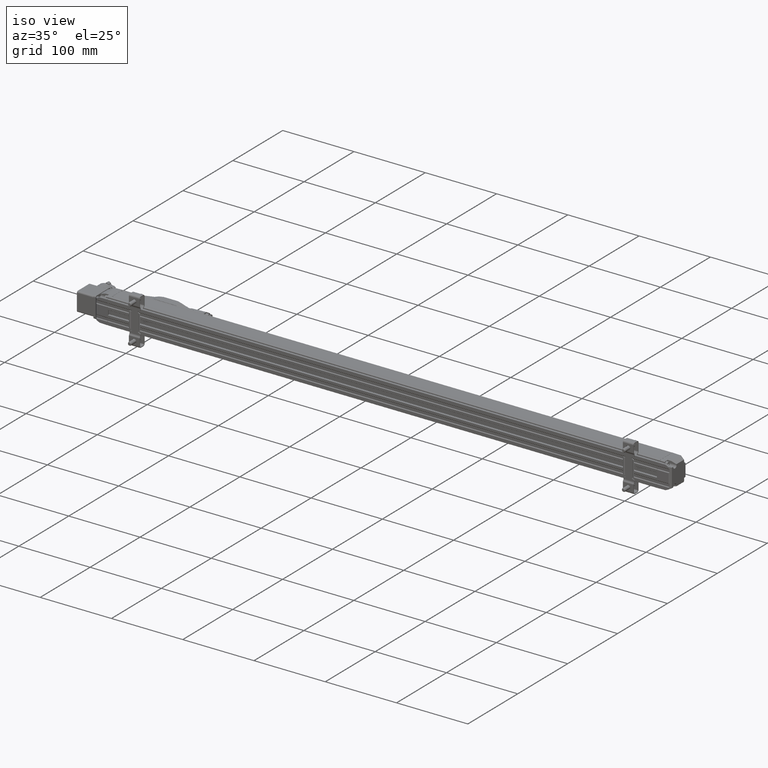
[diagram: clean part render]
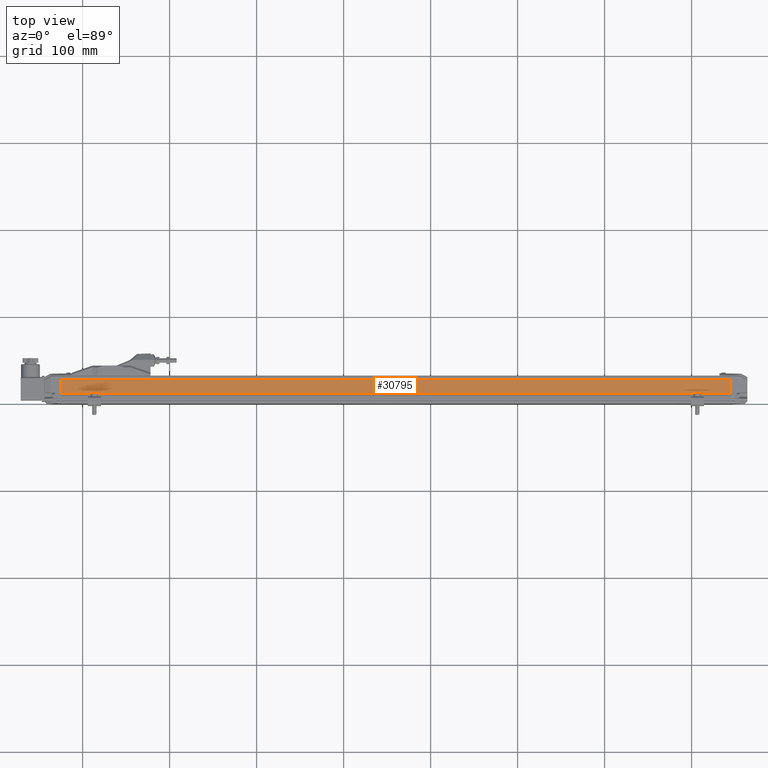
[diagram: tour spotlight — one face highlighted and labeled with its STEP entity id]
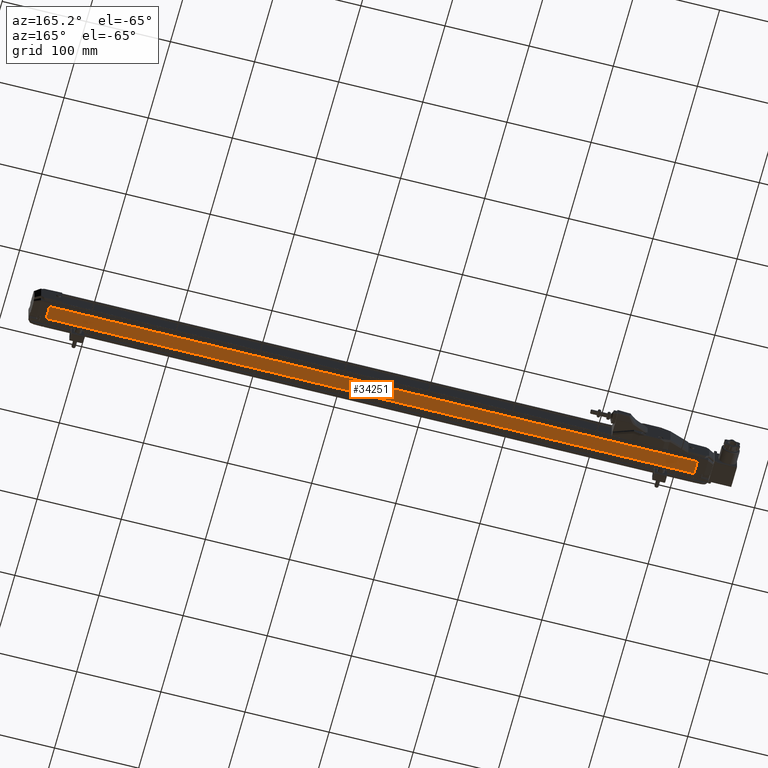
[diagram: tour spotlight — one face highlighted and labeled with its STEP entity id]
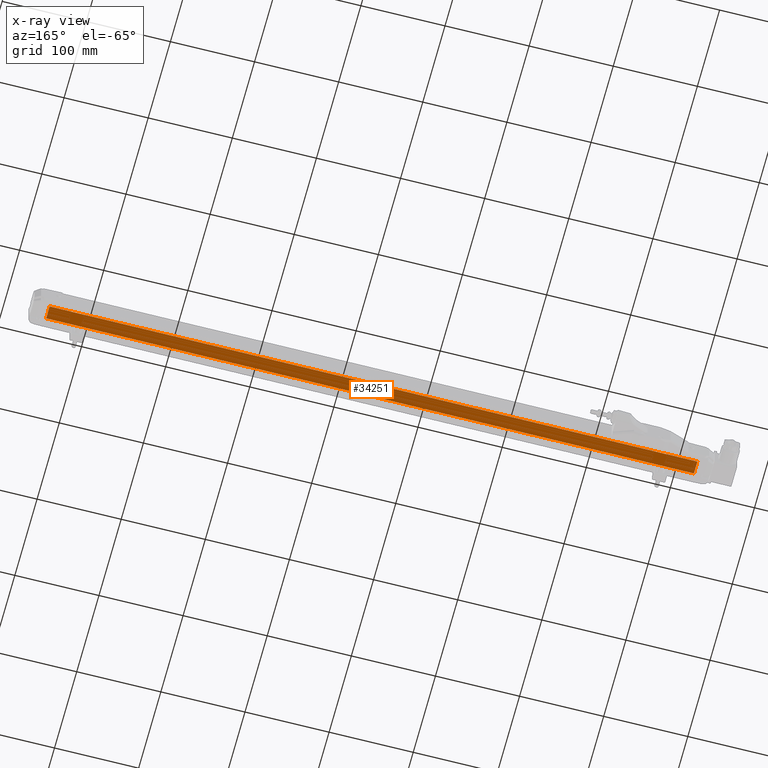
[diagram: x-ray of the same camera — body ghosted, this tour face saturated]
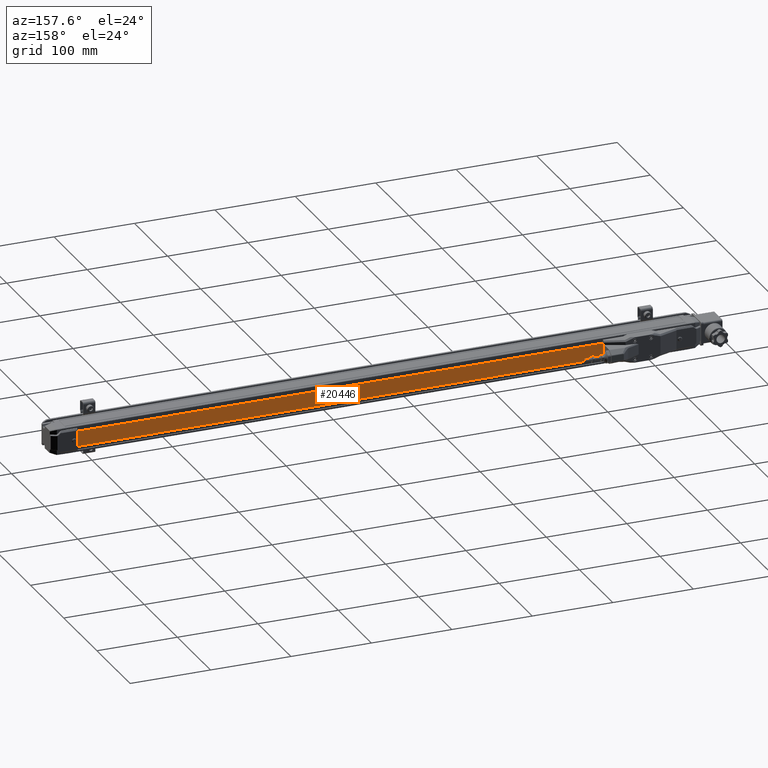
[diagram: tour spotlight — one face highlighted and labeled with its STEP entity id]
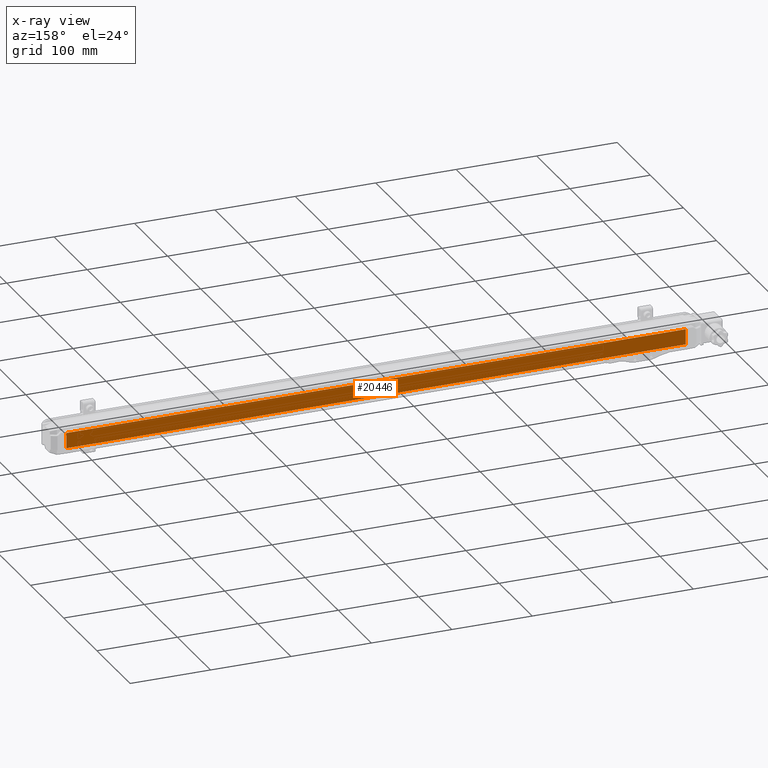
[diagram: x-ray of the same camera — body ghosted, this tour face saturated]
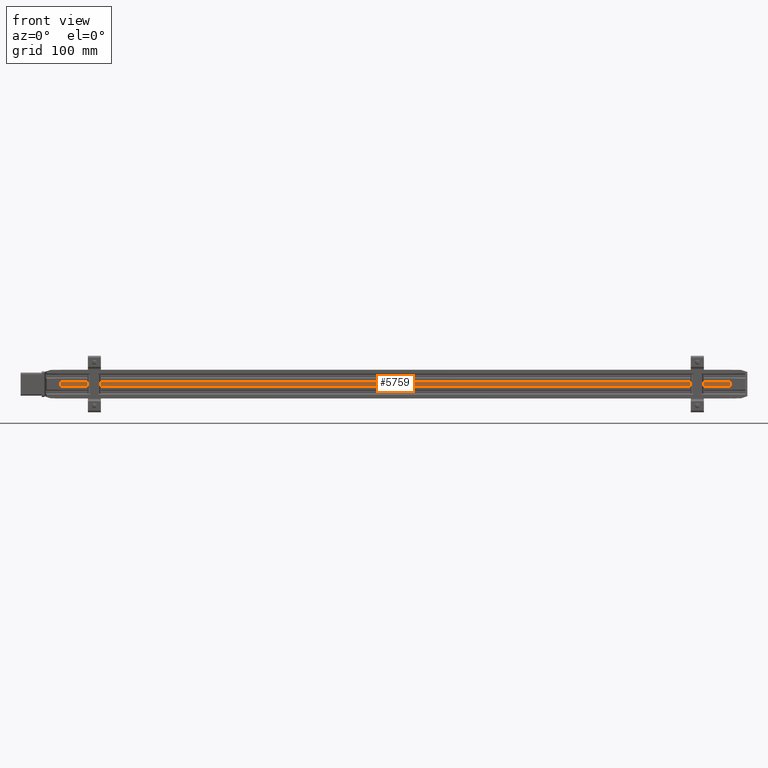
[diagram: tour spotlight — one face highlighted and labeled with its STEP entity id]
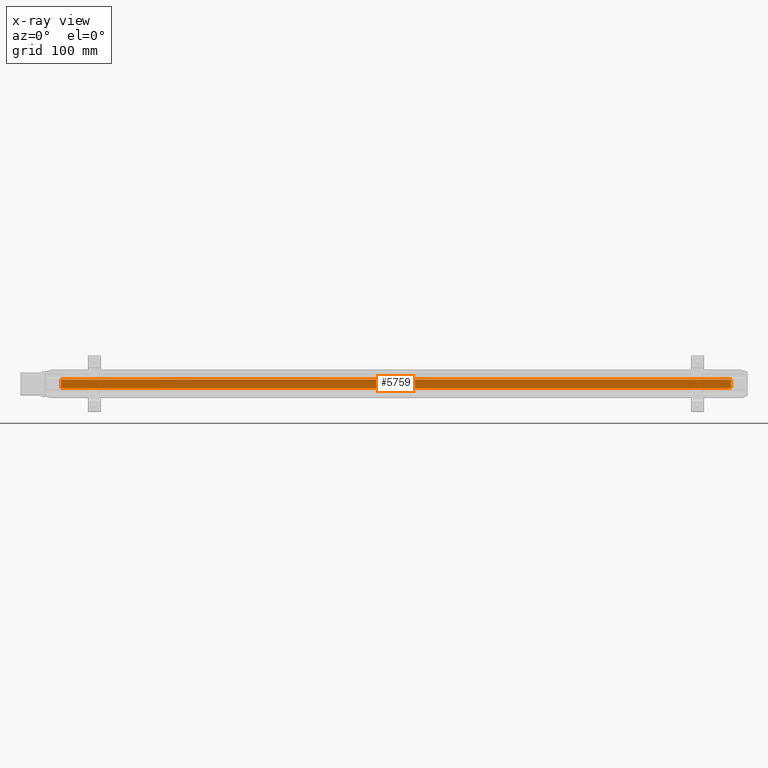
[diagram: x-ray of the same camera — body ghosted, this tour face saturated]
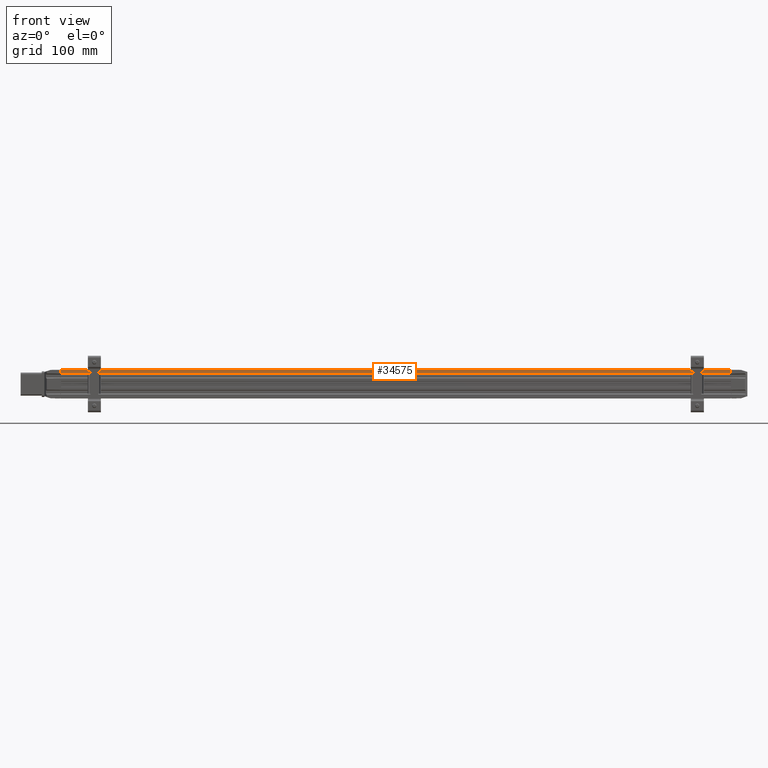
[diagram: tour spotlight — one face highlighted and labeled with its STEP entity id]
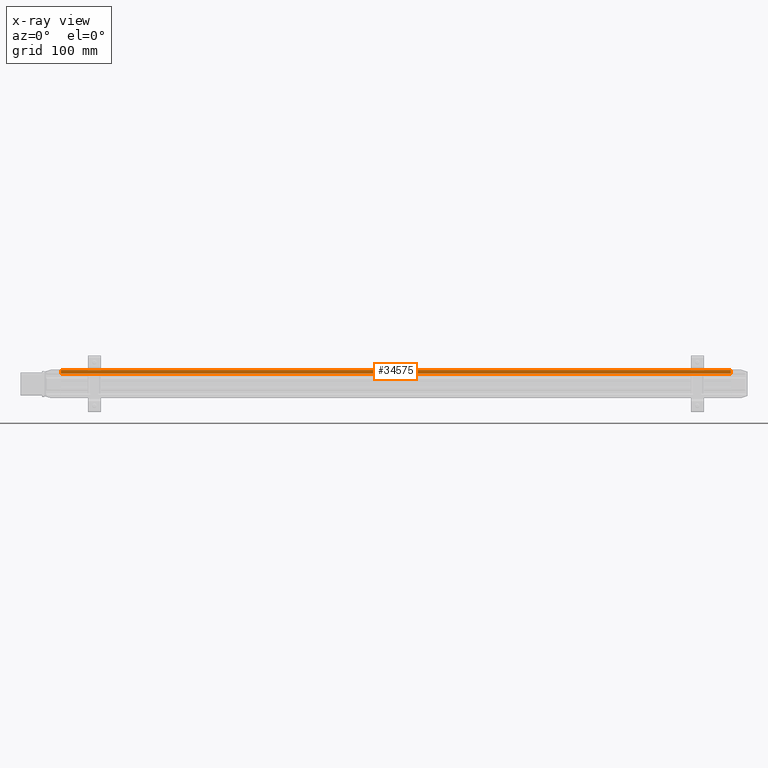
[diagram: x-ray of the same camera — body ghosted, this tour face saturated]
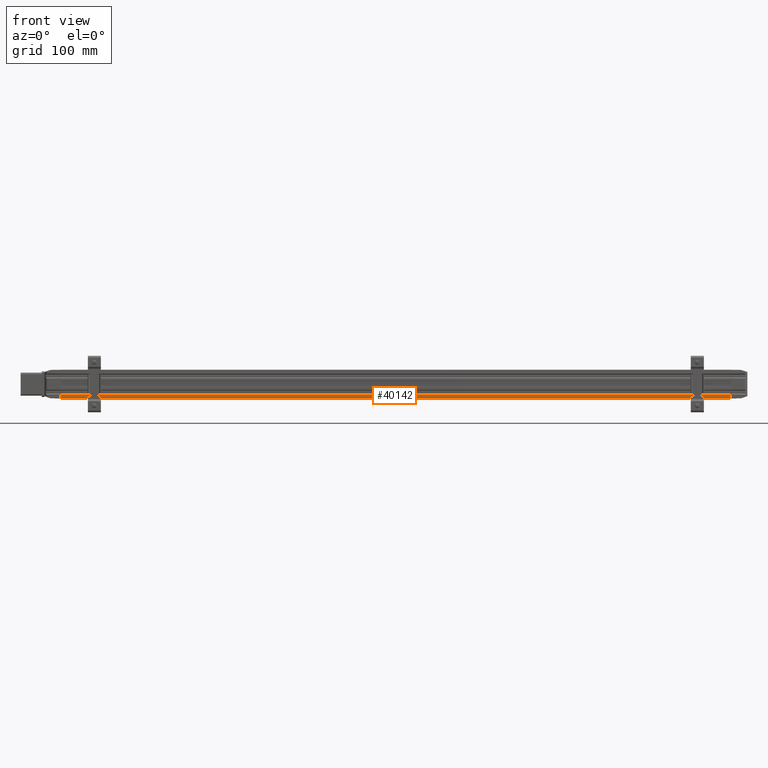
[diagram: tour spotlight — one face highlighted and labeled with its STEP entity id]
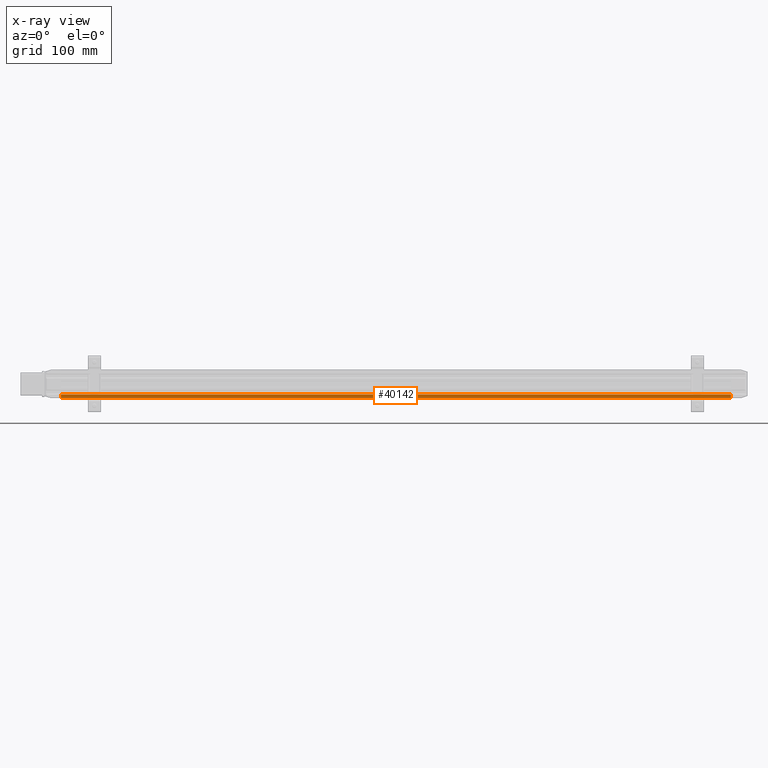
[diagram: x-ray of the same camera — body ghosted, this tour face saturated]
A machine part: a face-by-face anatomy tour. The part has 1314 B-rep faces; the first image is the clean iso view, then the 6 largest visible faces are spotlighted one at a time (largest first), each with its STEP entity span.

Face 1 — top view, entity #30795. In plain terms, the highlighted planar face has unit normal (-0, -0, -1).
Definition (entity closure, byte-faithful):
#1591 = DIRECTION ( 'NONE',  ( 1.000000000000000000, -6.829894528618840264E-25, -1.341063538875720069E-28 ) ) ;
#2057 = ORIENTED_EDGE ( 'NONE', *, *, #22089, .T. ) ;
#3662 = LINE ( 'NONE', #21386, #44705 ) ;
#4028 = DIRECTION ( 'NONE',  ( -1.341063538875720069E-28, -1.936991253392630006E-26, -1.000000000000000000 ) ) ;
#4996 = DIRECTION ( 'NONE',  ( 6.829894528618840264E-25, 1.000000000000000000, -1.936991253392630006E-26 ) ) ;
#5271 = VERTEX_POINT ( 'NONE', #38239 ) ;
#5384 = VERTEX_POINT ( 'NONE', #20945 ) ;
#5745 = CARTESIAN_POINT ( 'NONE',  ( -4.921259842519685179, 0.4468503849212598911, 0.000000000000000000 ) ) ;
#6387 = LINE ( 'NONE', #20380, #38496 ) ;
#8839 = EDGE_CURVE ( 'NONE', #5271, #33490, #12320, .T. ) ;
#9257 = PLANE ( 'NONE',  #15667 ) ;
#11718 = DIRECTION ( 'NONE',  ( -1.000000000000000000, 6.829894528618840264E-25, 1.341063538875720069E-28 ) ) ;
#12320 = LINE ( 'NONE', #43813, #36620 ) ;
#13633 = ORIENTED_EDGE ( 'NONE', *, *, #42306, .F. ) ;
#15667 = AXIS2_PLACEMENT_3D ( 'NONE', #5745, #4028, #11718 ) ;
#17811 = DIRECTION ( 'NONE',  ( 1.000000000000000000, -6.829894528618840264E-25, -1.341063538875720069E-28 ) ) ;
#18743 = ORIENTED_EDGE ( 'NONE', *, *, #8839, .F. ) ;
#19876 = CARTESIAN_POINT ( 'NONE',  ( -4.921259842519685179, 0.4468503849212598911, 0.000000000000000000 ) ) ;
#20380 = CARTESIAN_POINT ( 'NONE',  ( -4.921259842519685179, 0.4468503849212598911, 0.000000000000000000 ) ) ;
#20945 = CARTESIAN_POINT ( 'NONE',  ( 25.39370078740157766, 0.4468503849212598911, 0.000000000000000000 ) ) ;
#21386 = CARTESIAN_POINT ( 'NONE',  ( 25.39370078740157766, 0.4468503849212598911, 0.000000000000000000 ) ) ;
#21572 = EDGE_LOOP ( 'NONE', ( #40406, #18743, #13633, #2057 ) ) ;
#21863 = VECTOR ( 'NONE', #4996, 39.37007874015748143 ) ;
#22089 = EDGE_CURVE ( 'NONE', #44454, #5384, #6387, .T. ) ;
#22724 = LINE ( 'NONE', #33446, #21863 ) ;
#26981 = FACE_OUTER_BOUND ( 'NONE', #21572, .T. ) ;
#30517 = EDGE_CURVE ( 'NONE', #5384, #33490, #3662, .T. ) ;
#30795 = ADVANCED_FACE ( 'NONE', ( #26981 ), #9257, .F. ) ;
#33446 = CARTESIAN_POINT ( 'NONE',  ( -4.921259842519685179, 0.4468503849212598911, 0.000000000000000000 ) ) ;
#33490 = VERTEX_POINT ( 'NONE', #39282 ) ;
#35858 = DIRECTION ( 'NONE',  ( 6.829894528618840264E-25, 1.000000000000000000, -1.936991253392630006E-26 ) ) ;
#36620 = VECTOR ( 'NONE', #1591, 39.37007874015748143 ) ;
#38239 = CARTESIAN_POINT ( 'NONE',  ( -4.921259842519685179, 1.061023630314960720, 0.000000000000000000 ) ) ;
#38496 = VECTOR ( 'NONE', #17811, 39.37007874015748143 ) ;
#39282 = CARTESIAN_POINT ( 'NONE',  ( 25.39370078740157766, 1.061023630314960720, 0.000000000000000000 ) ) ;
#40406 = ORIENTED_EDGE ( 'NONE', *, *, #30517, .T. ) ;
#42306 = EDGE_CURVE ( 'NONE', #44454, #5271, #22724, .T. ) ;
#43813 = CARTESIAN_POINT ( 'NONE',  ( -4.921259842519685179, 1.061023630314960720, 0.000000000000000000 ) ) ;
#44454 = VERTEX_POINT ( 'NONE', #19876 ) ;
#44705 = VECTOR ( 'NONE', #35858, 39.37007874015748143 ) ;

Face 2 — auxiliary view, entity #34251. An x-ray twin of the same camera follows (body ghosted, this face saturated) — the face is partly hidden behind the body. In plain terms, the highlighted planar face has unit normal (0, 0, 1).
Definition (entity closure, byte-faithful):
#203 = LINE ( 'NONE', #10933, #27644 ) ;
#668 = CARTESIAN_POINT ( 'NONE',  ( 25.39370078740157766, 0.4468503849212598911, -1.299077997440944987 ) ) ;
#1957 = ORIENTED_EDGE ( 'NONE', *, *, #22301, .T. ) ;
#5527 = CARTESIAN_POINT ( 'NONE',  ( -4.921259842519685179, 1.061023630314960720, -1.299077997440944987 ) ) ;
#6418 = DIRECTION ( 'NONE',  ( 1.341063538875720069E-28, 1.936991253392630006E-26, 1.000000000000000000 ) ) ;
#7433 = DIRECTION ( 'NONE',  ( 1.000000000000000000, -6.829894528618840264E-25, -1.341063538875720069E-28 ) ) ;
#8647 = VERTEX_POINT ( 'NONE', #668 ) ;
#8721 = EDGE_CURVE ( 'NONE', #11945, #8647, #203, .T. ) ;
#9015 = LINE ( 'NONE', #5527, #30863 ) ;
#10933 = CARTESIAN_POINT ( 'NONE',  ( -4.921259842519685179, 0.4468503849212598911, -1.299077997440944987 ) ) ;
#11945 = VERTEX_POINT ( 'NONE', #27658 ) ;
#12882 = LINE ( 'NONE', #15925, #37027 ) ;
#15771 = AXIS2_PLACEMENT_3D ( 'NONE', #20415, #6418, #21103 ) ;
#15925 = CARTESIAN_POINT ( 'NONE',  ( 25.39370078740157766, 1.061023630314960720, -1.299077997440944987 ) ) ;
#20415 = CARTESIAN_POINT ( 'NONE',  ( -4.921259842519685179, 1.061023630314960720, -1.299077997440944987 ) ) ;
#20773 = DIRECTION ( 'NONE',  ( -6.829894528618840264E-25, -1.000000000000000000, 1.936991253392630006E-26 ) ) ;
#20855 = EDGE_LOOP ( 'NONE', ( #1957, #21944, #39432, #29775 ) ) ;
#21103 = DIRECTION ( 'NONE',  ( 1.000000000000000000, -6.829894528618840264E-25, -1.341063538875720069E-28 ) ) ;
#21944 = ORIENTED_EDGE ( 'NONE', *, *, #8721, .F. ) ;
#22090 = CARTESIAN_POINT ( 'NONE',  ( -4.921259842519685179, 1.061023630314960720, -1.299077997440944987 ) ) ;
#22301 = EDGE_CURVE ( 'NONE', #37273, #8647, #12882, .T. ) ;
#23601 = LINE ( 'NONE', #28020, #37137 ) ;
#23607 = DIRECTION ( 'NONE',  ( -6.829894528618840264E-25, -1.000000000000000000, 1.936991253392630006E-26 ) ) ;
#23923 = FACE_OUTER_BOUND ( 'NONE', #20855, .T. ) ;
#27644 = VECTOR ( 'NONE', #7433, 39.37007874015748143 ) ;
#27658 = CARTESIAN_POINT ( 'NONE',  ( -4.921259842519685179, 0.4468503849212598911, -1.299077997440944987 ) ) ;
#27719 = EDGE_CURVE ( 'NONE', #30544, #11945, #23601, .T. ) ;
#28020 = CARTESIAN_POINT ( 'NONE',  ( -4.921259842519685179, 1.061023630314960720, -1.299077997440944987 ) ) ;
#29775 = ORIENTED_EDGE ( 'NONE', *, *, #39097, .T. ) ;
#30544 = VERTEX_POINT ( 'NONE', #22090 ) ;
#30863 = VECTOR ( 'NONE', #40741, 39.37007874015748143 ) ;
#34251 = ADVANCED_FACE ( 'NONE', ( #23923 ), #38378, .F. ) ;
#37027 = VECTOR ( 'NONE', #23607, 39.37007874015748143 ) ;
#37137 = VECTOR ( 'NONE', #20773, 39.37007874015748143 ) ;
#37273 = VERTEX_POINT ( 'NONE', #42769 ) ;
#38378 = PLANE ( 'NONE',  #15771 ) ;
#39097 = EDGE_CURVE ( 'NONE', #30544, #37273, #9015, .T. ) ;
#39432 = ORIENTED_EDGE ( 'NONE', *, *, #27719, .F. ) ;
#40741 = DIRECTION ( 'NONE',  ( 1.000000000000000000, -6.829894528618840264E-25, -1.341063538875720069E-28 ) ) ;
#42769 = CARTESIAN_POINT ( 'NONE',  ( 25.39370078740157766, 1.061023630314960720, -1.299077997440944987 ) ) ;

Face 3 — auxiliary view, entity #20446. An x-ray twin of the same camera follows (body ghosted, this face saturated) — the face is partly hidden behind the body. In plain terms, the highlighted planar face has unit normal (-0, -1, -0).
Definition (entity closure, byte-faithful):
#334 = CARTESIAN_POINT ( 'NONE',  ( 25.39370078740157766, 1.244094468976377987, -0.2731299497244098484 ) ) ;
#962 = VECTOR ( 'NONE', #34525, 39.37007874015748143 ) ;
#3157 = PLANE ( 'NONE',  #31240 ) ;
#3387 = DIRECTION ( 'NONE',  ( 1.341063538875099911E-28, -9.072071993112328873E-17, 1.000000000000000000 ) ) ;
#3556 = ORIENTED_EDGE ( 'NONE', *, *, #7709, .T. ) ;
#5383 = CARTESIAN_POINT ( 'NONE',  ( -4.921259842519685179, 1.244094468976377987, -0.2731299497244098484 ) ) ;
#6463 = LINE ( 'NONE', #31205, #30367 ) ;
#6508 = ORIENTED_EDGE ( 'NONE', *, *, #41247, .F. ) ;
#6830 = VECTOR ( 'NONE', #21314, 39.37007874015748143 ) ;
#7709 = EDGE_CURVE ( 'NONE', #21124, #20687, #26673, .T. ) ;
#7892 = CARTESIAN_POINT ( 'NONE',  ( -4.921259842519685179, 1.244094468976377987, -0.7974689979512658011 ) ) ;
#8151 = LINE ( 'NONE', #33123, #42482 ) ;
#9702 = EDGE_CURVE ( 'NONE', #12464, #20687, #28338, .T. ) ;
#9706 = EDGE_CURVE ( 'NONE', #19536, #21124, #35548, .T. ) ;
#9854 = CARTESIAN_POINT ( 'NONE',  ( 25.39370078740157766, 1.244094468976377987, -0.2731299497244098484 ) ) ;
#10019 = EDGE_CURVE ( 'NONE', #45299, #12464, #8151, .T. ) ;
#10315 = DIRECTION ( 'NONE',  ( -1.341063538875099911E-28, 9.072071993112328873E-17, -1.000000000000000000 ) ) ;
#10319 = CARTESIAN_POINT ( 'NONE',  ( 25.39370078740157766, 1.244094468976377987, -0.2731299497244098484 ) ) ;
#11759 = DIRECTION ( 'NONE',  ( -1.341063538875099911E-28, 9.072071993112328873E-17, -1.000000000000000000 ) ) ;
#12464 = VERTEX_POINT ( 'NONE', #40426 ) ;
#13399 = ORIENTED_EDGE ( 'NONE', *, *, #15323, .T. ) ;
#13886 = DIRECTION ( 'NONE',  ( -6.829894528618840264E-25, -1.000000000000000000, -9.072071993112328873E-17 ) ) ;
#15323 = EDGE_CURVE ( 'NONE', #26445, #23358, #6463, .T. ) ;
#18283 = EDGE_LOOP ( 'NONE', ( #44034, #28222, #3556, #46096, #39824, #24644, #6508, #13399 ) ) ;
#19536 = VERTEX_POINT ( 'NONE', #42334 ) ;
#19604 = DIRECTION ( 'NONE',  ( -1.341063538875099911E-28, 9.072071993112328873E-17, -1.000000000000000000 ) ) ;
#20446 = ADVANCED_FACE ( 'NONE', ( #24392 ), #3157, .F. ) ;
#20687 = VERTEX_POINT ( 'NONE', #37446 ) ;
#21124 = VERTEX_POINT ( 'NONE', #30383 ) ;
#21314 = DIRECTION ( 'NONE',  ( 1.000000000000000000, -6.829894528618840264E-25, -1.341063538875720069E-28 ) ) ;
#23358 = VERTEX_POINT ( 'NONE', #10319 ) ;
#24392 = FACE_OUTER_BOUND ( 'NONE', #18283, .T. ) ;
#24644 = ORIENTED_EDGE ( 'NONE', *, *, #37732, .F. ) ;
#26445 = VERTEX_POINT ( 'NONE', #27786 ) ;
#26653 = CARTESIAN_POINT ( 'NONE',  ( 25.39370078740157766, 1.244094468976377987, -0.2731299497244098484 ) ) ;
#26673 = LINE ( 'NONE', #9854, #35178 ) ;
#27509 = EDGE_CURVE ( 'NONE', #23358, #19536, #43687, .T. ) ;
#27786 = CARTESIAN_POINT ( 'NONE',  ( -4.921259842519685179, 1.244094468976377987, -0.2731299497244098484 ) ) ;
#28222 = ORIENTED_EDGE ( 'NONE', *, *, #9706, .T. ) ;
#28338 = LINE ( 'NONE', #39059, #6830 ) ;
#30367 = VECTOR ( 'NONE', #45412, 39.37007874015748143 ) ;
#30383 = CARTESIAN_POINT ( 'NONE',  ( 25.39370078740157766, 1.244094468976377987, -0.7971094529879507729 ) ) ;
#30798 = CARTESIAN_POINT ( 'NONE',  ( -4.921259842519685179, 1.244094468976377987, -0.2731299497244098484 ) ) ;
#31205 = CARTESIAN_POINT ( 'NONE',  ( -4.921259842519685179, 1.244094468976377987, -0.2731299497244098484 ) ) ;
#31240 = AXIS2_PLACEMENT_3D ( 'NONE', #38174, #13886, #3387 ) ;
#32246 = VERTEX_POINT ( 'NONE', #43419 ) ;
#32926 = VECTOR ( 'NONE', #11759, 39.37007874015748143 ) ;
#33123 = CARTESIAN_POINT ( 'NONE',  ( -4.921259842519685179, 1.244094468976377987, -0.2731299497244098484 ) ) ;
#34118 = DIRECTION ( 'NONE',  ( -1.341063538875099911E-28, 9.072071993112328873E-17, -1.000000000000000000 ) ) ;
#34525 = DIRECTION ( 'NONE',  ( -1.341063538875099911E-28, 9.072071993112328873E-17, -1.000000000000000000 ) ) ;
#35178 = VECTOR ( 'NONE', #34118, 39.37007874015748143 ) ;
#35548 = LINE ( 'NONE', #334, #32926 ) ;
#36473 = DIRECTION ( 'NONE',  ( -1.341063538875099911E-28, 9.072071993112328873E-17, -1.000000000000000000 ) ) ;
#37446 = CARTESIAN_POINT ( 'NONE',  ( 25.39370078740157766, 1.244094468976377987, -1.025948047716535472 ) ) ;
#37732 = EDGE_CURVE ( 'NONE', #32246, #45299, #41288, .T. ) ;
#37958 = VECTOR ( 'NONE', #36473, 39.37007874015748143 ) ;
#38174 = CARTESIAN_POINT ( 'NONE',  ( -4.921259842519685179, 1.244094468976377987, -0.2731299497244098484 ) ) ;
#39059 = CARTESIAN_POINT ( 'NONE',  ( -4.921259842519685179, 1.244094468976377987, -1.025948047716535472 ) ) ;
#39824 = ORIENTED_EDGE ( 'NONE', *, *, #10019, .F. ) ;
#40426 = CARTESIAN_POINT ( 'NONE',  ( -4.921259842519685179, 1.244094468976377987, -1.025948047716535472 ) ) ;
#41247 = EDGE_CURVE ( 'NONE', #26445, #32246, #44098, .T. ) ;
#41288 = LINE ( 'NONE', #30798, #962 ) ;
#42334 = CARTESIAN_POINT ( 'NONE',  ( 25.39370078740157766, 1.244094468976377987, -0.5019685431158645850 ) ) ;
#42482 = VECTOR ( 'NONE', #10315, 39.37007874015748143 ) ;
#42663 = VECTOR ( 'NONE', #19604, 39.37007874015748143 ) ;
#43419 = CARTESIAN_POINT ( 'NONE',  ( -4.921259842519685179, 1.244094468976377987, -0.5023280880783432822 ) ) ;
#43687 = LINE ( 'NONE', #26653, #37958 ) ;
#44034 = ORIENTED_EDGE ( 'NONE', *, *, #27509, .T. ) ;
#44098 = LINE ( 'NONE', #5383, #42663 ) ;
#45299 = VERTEX_POINT ( 'NONE', #7892 ) ;
#45412 = DIRECTION ( 'NONE',  ( 1.000000000000000000, -6.829894528618840264E-25, -1.341063538875720069E-28 ) ) ;
#46096 = ORIENTED_EDGE ( 'NONE', *, *, #9702, .F. ) ;

Face 4 — front view, entity #5759. An x-ray twin of the same camera follows (body ghosted, this face saturated) — the face is partly hidden behind the body. In plain terms, the highlighted planar face has unit normal (0, 1, -0).
Definition (entity closure, byte-faithful):
#2486 = CARTESIAN_POINT ( 'NONE',  ( -4.921259842519685179, 0.2367734739763779905, -0.8483578963779528914 ) ) ;
#4880 = LINE ( 'NONE', #5107, #38502 ) ;
#5107 = CARTESIAN_POINT ( 'NONE',  ( 25.39370078740157766, 0.2367734739763779905, -0.8483578963779528914 ) ) ;
#5759 = ADVANCED_FACE ( 'NONE', ( #37509 ), #23955, .F. ) ;
#6629 = VERTEX_POINT ( 'NONE', #16154 ) ;
#7423 = LINE ( 'NONE', #28434, #41116 ) ;
#7714 = VECTOR ( 'NONE', #36297, 39.37007874015748143 ) ;
#13041 = VERTEX_POINT ( 'NONE', #28785 ) ;
#14415 = CARTESIAN_POINT ( 'NONE',  ( 25.39370078740157766, 0.2367734739763779905, -0.8483578963779528914 ) ) ;
#15066 = EDGE_CURVE ( 'NONE', #40568, #39322, #4880, .T. ) ;
#16154 = CARTESIAN_POINT ( 'NONE',  ( -4.921259842519685179, 0.2367734739763780460, -0.4507201011023622139 ) ) ;
#16727 = DIRECTION ( 'NONE',  ( -1.341063538876892003E-28, -1.717547996210339859E-16, -1.000000000000000000 ) ) ;
#17250 = CARTESIAN_POINT ( 'NONE',  ( -4.921259842519685179, 0.2367734739763779905, -0.8483578963779528914 ) ) ;
#22510 = CARTESIAN_POINT ( 'NONE',  ( 25.39370078740157766, 0.2367734739763779905, -0.4507201011023622139 ) ) ;
#22789 = ORIENTED_EDGE ( 'NONE', *, *, #28946, .F. ) ;
#23801 = LINE ( 'NONE', #17250, #29763 ) ;
#23955 = PLANE ( 'NONE',  #30655 ) ;
#24257 = DIRECTION ( 'NONE',  ( 1.341063538876892003E-28, 1.717547996210339859E-16, 1.000000000000000000 ) ) ;
#25330 = LINE ( 'NONE', #32558, #7714 ) ;
#28434 = CARTESIAN_POINT ( 'NONE',  ( -4.921259842519685179, 0.2367734739763779905, -0.4507201011023622139 ) ) ;
#28785 = CARTESIAN_POINT ( 'NONE',  ( -4.921259842519685179, 0.2367734739763779628, -0.8483578963779528914 ) ) ;
#28946 = EDGE_CURVE ( 'NONE', #13041, #6629, #23801, .T. ) ;
#29763 = VECTOR ( 'NONE', #24257, 39.37007874015748143 ) ;
#30655 = AXIS2_PLACEMENT_3D ( 'NONE', #2486, #38185, #16727 ) ;
#32301 = EDGE_LOOP ( 'NONE', ( #41838, #46154, #22789, #42324 ) ) ;
#32558 = CARTESIAN_POINT ( 'NONE',  ( -4.921259842519685179, 0.2367734739763779905, -0.8483578963779528914 ) ) ;
#36297 = DIRECTION ( 'NONE',  ( 1.000000000000000000, -6.829894528618840264E-25, -1.341063538875720069E-28 ) ) ;
#36915 = EDGE_CURVE ( 'NONE', #6629, #39322, #7423, .T. ) ;
#37509 = FACE_OUTER_BOUND ( 'NONE', #32301, .T. ) ;
#38185 = DIRECTION ( 'NONE',  ( 6.829894528618840264E-25, 1.000000000000000000, -1.717547996210339859E-16 ) ) ;
#38502 = VECTOR ( 'NONE', #44046, 39.37007874015748143 ) ;
#38686 = DIRECTION ( 'NONE',  ( 1.000000000000000000, -6.829894528618840264E-25, -1.341063538875720069E-28 ) ) ;
#39322 = VERTEX_POINT ( 'NONE', #22510 ) ;
#40568 = VERTEX_POINT ( 'NONE', #14415 ) ;
#41116 = VECTOR ( 'NONE', #38686, 39.37007874015748143 ) ;
#41838 = ORIENTED_EDGE ( 'NONE', *, *, #15066, .T. ) ;
#42324 = ORIENTED_EDGE ( 'NONE', *, *, #43835, .T. ) ;
#43835 = EDGE_CURVE ( 'NONE', #13041, #40568, #25330, .T. ) ;
#44046 = DIRECTION ( 'NONE',  ( 1.341063538876892003E-28, 1.717547996210339859E-16, 1.000000000000000000 ) ) ;
#46154 = ORIENTED_EDGE ( 'NONE', *, *, #36915, .F. ) ;

Face 5 — front view, entity #34575. An x-ray twin of the same camera follows (body ghosted, this face saturated) — the face is partly hidden behind the body. In plain terms, the highlighted planar face has unit normal (0, 1, -0).
Definition (entity closure, byte-faithful):
#1548 = DIRECTION ( 'NONE',  ( 1.000000000000000000, -6.829894528618840264E-25, -1.341063538875720069E-28 ) ) ;
#3319 = DIRECTION ( 'NONE',  ( 6.829894528618840264E-25, 1.000000000000000000, -1.936991253392630006E-26 ) ) ;
#3349 = EDGE_LOOP ( 'NONE', ( #8468, #27700, #16575, #25815 ) ) ;
#4431 = VECTOR ( 'NONE', #13863, 39.37007874015748143 ) ;
#6412 = LINE ( 'NONE', #27646, #4431 ) ;
#7898 = DIRECTION ( 'NONE',  ( 1.341063538875720069E-28, 1.936991253392630006E-26, 1.000000000000000000 ) ) ;
#8468 = ORIENTED_EDGE ( 'NONE', *, *, #29270, .T. ) ;
#8529 = DIRECTION ( 'NONE',  ( 1.000000000000000000, -6.829894528618840264E-25, -1.341063538875720069E-28 ) ) ;
#10154 = VERTEX_POINT ( 'NONE', #15363 ) ;
#13050 = CARTESIAN_POINT ( 'NONE',  ( 25.39370078740157766, 0.000000000000000000, -0.1768925279133860273 ) ) ;
#13135 = FACE_OUTER_BOUND ( 'NONE', #3349, .T. ) ;
#13697 = VECTOR ( 'NONE', #1548, 39.37007874015748143 ) ;
#13818 = CARTESIAN_POINT ( 'NONE',  ( -4.921259842519685179, 0.000000000000000000, -0.1768925279133860273 ) ) ;
#13863 = DIRECTION ( 'NONE',  ( 1.341063538875720069E-28, 1.936991253392630006E-26, 1.000000000000000000 ) ) ;
#15363 = CARTESIAN_POINT ( 'NONE',  ( 25.39370078740157766, 0.000000000000000000, -0.01968503937007873988 ) ) ;
#15436 = EDGE_CURVE ( 'NONE', #41567, #10154, #30224, .T. ) ;
#16575 = ORIENTED_EDGE ( 'NONE', *, *, #19358, .F. ) ;
#17937 = CARTESIAN_POINT ( 'NONE',  ( -4.921259842519685179, 0.000000000000000000, -0.1768925279133860273 ) ) ;
#19358 = EDGE_CURVE ( 'NONE', #45888, #41567, #40090, .T. ) ;
#22997 = VECTOR ( 'NONE', #7898, 39.37007874015748143 ) ;
#25815 = ORIENTED_EDGE ( 'NONE', *, *, #42878, .T. ) ;
#27646 = CARTESIAN_POINT ( 'NONE',  ( 25.39370078740157766, 0.000000000000000000, -0.1768925279133860273 ) ) ;
#27700 = ORIENTED_EDGE ( 'NONE', *, *, #15436, .F. ) ;
#29270 = EDGE_CURVE ( 'NONE', #37703, #10154, #6412, .T. ) ;
#30224 = LINE ( 'NONE', #34387, #45215 ) ;
#31784 = PLANE ( 'NONE',  #36636 ) ;
#33507 = CARTESIAN_POINT ( 'NONE',  ( -4.921259842519685179, 0.000000000000000000, -0.1768925279133860273 ) ) ;
#34387 = CARTESIAN_POINT ( 'NONE',  ( -4.921259842519685179, 0.000000000000000000, -0.01968503937007873988 ) ) ;
#34575 = ADVANCED_FACE ( 'NONE', ( #13135 ), #31784, .F. ) ;
#35611 = LINE ( 'NONE', #33507, #13697 ) ;
#36636 = AXIS2_PLACEMENT_3D ( 'NONE', #13818, #3319, #38548 ) ;
#37703 = VERTEX_POINT ( 'NONE', #13050 ) ;
#38548 = DIRECTION ( 'NONE',  ( -1.000000000000000000, 6.829894528618840264E-25, 1.341063538875720069E-28 ) ) ;
#39157 = CARTESIAN_POINT ( 'NONE',  ( -4.921259842519685179, 0.000000000000000000, -0.01968503937007873988 ) ) ;
#39924 = CARTESIAN_POINT ( 'NONE',  ( -4.921259842519685179, 0.000000000000000000, -0.1768925279133860273 ) ) ;
#40090 = LINE ( 'NONE', #17937, #22997 ) ;
#41567 = VERTEX_POINT ( 'NONE', #39157 ) ;
#42878 = EDGE_CURVE ( 'NONE', #45888, #37703, #35611, .T. ) ;
#45215 = VECTOR ( 'NONE', #8529, 39.37007874015748143 ) ;
#45888 = VERTEX_POINT ( 'NONE', #39924 ) ;

Face 6 — front view, entity #40142. An x-ray twin of the same camera follows (body ghosted, this face saturated) — the face is partly hidden behind the body. In plain terms, the highlighted planar face has unit normal (0, 1, -0).
Definition (entity closure, byte-faithful):
#3002 = LINE ( 'NONE', #31485, #27193 ) ;
#3097 = AXIS2_PLACEMENT_3D ( 'NONE', #18599, #43316, #45938 ) ;
#3837 = VERTEX_POINT ( 'NONE', #31291 ) ;
#3859 = VECTOR ( 'NONE', #17817, 39.37007874015748143 ) ;
#5135 = EDGE_CURVE ( 'NONE', #28015, #3837, #12134, .T. ) ;
#6388 = EDGE_CURVE ( 'NONE', #15107, #3837, #31357, .T. ) ;
#8338 = PLANE ( 'NONE',  #3097 ) ;
#11377 = ORIENTED_EDGE ( 'NONE', *, *, #5135, .F. ) ;
#11833 = FACE_OUTER_BOUND ( 'NONE', #11852, .T. ) ;
#11852 = EDGE_LOOP ( 'NONE', ( #31782, #11377, #26661, #45170 ) ) ;
#12134 = LINE ( 'NONE', #44086, #21705 ) ;
#15107 = VERTEX_POINT ( 'NONE', #40564 ) ;
#16949 = CARTESIAN_POINT ( 'NONE',  ( -4.921259842519685179, 0.000000000000000000, -1.279392958070866282 ) ) ;
#17021 = VECTOR ( 'NONE', #32066, 39.37007874015748143 ) ;
#17251 = EDGE_CURVE ( 'NONE', #41852, #15107, #25773, .T. ) ;
#17817 = DIRECTION ( 'NONE',  ( 1.341063538875720069E-28, 1.936991253392630006E-26, 1.000000000000000000 ) ) ;
#18599 = CARTESIAN_POINT ( 'NONE',  ( -4.921259842519685179, 0.000000000000000000, -1.279392958070866282 ) ) ;
#19808 = CARTESIAN_POINT ( 'NONE',  ( -4.921259842519685179, 0.000000000000000000, -1.122185469527559043 ) ) ;
#21705 = VECTOR ( 'NONE', #32921, 39.37007874015748143 ) ;
#25773 = LINE ( 'NONE', #43497, #17021 ) ;
#26661 = ORIENTED_EDGE ( 'NONE', *, *, #46143, .F. ) ;
#27193 = VECTOR ( 'NONE', #44785, 39.37007874015748143 ) ;
#28015 = VERTEX_POINT ( 'NONE', #19808 ) ;
#31291 = CARTESIAN_POINT ( 'NONE',  ( 25.39370078740157766, 0.000000000000000000, -1.122185469527559043 ) ) ;
#31357 = LINE ( 'NONE', #45564, #3859 ) ;
#31485 = CARTESIAN_POINT ( 'NONE',  ( -4.921259842519685179, 0.000000000000000000, -1.279392958070866282 ) ) ;
#31782 = ORIENTED_EDGE ( 'NONE', *, *, #6388, .T. ) ;
#32066 = DIRECTION ( 'NONE',  ( 1.000000000000000000, -6.829894528618840264E-25, -1.341063538875720069E-28 ) ) ;
#32921 = DIRECTION ( 'NONE',  ( 1.000000000000000000, -6.829894528618840264E-25, -1.341063538875720069E-28 ) ) ;
#40142 = ADVANCED_FACE ( 'NONE', ( #11833 ), #8338, .F. ) ;
#40564 = CARTESIAN_POINT ( 'NONE',  ( 25.39370078740157766, 0.000000000000000000, -1.279392958070866282 ) ) ;
#41852 = VERTEX_POINT ( 'NONE', #16949 ) ;
#43316 = DIRECTION ( 'NONE',  ( 6.829894528618840264E-25, 1.000000000000000000, -1.936991253392630006E-26 ) ) ;
#43497 = CARTESIAN_POINT ( 'NONE',  ( -4.921259842519685179, 0.000000000000000000, -1.279392958070866282 ) ) ;
#44086 = CARTESIAN_POINT ( 'NONE',  ( -4.921259842519685179, 0.000000000000000000, -1.122185469527559043 ) ) ;
#44785 = DIRECTION ( 'NONE',  ( 1.341063538875720069E-28, 1.936991253392630006E-26, 1.000000000000000000 ) ) ;
#45170 = ORIENTED_EDGE ( 'NONE', *, *, #17251, .T. ) ;
#45564 = CARTESIAN_POINT ( 'NONE',  ( 25.39370078740157766, 0.000000000000000000, -1.279392958070866282 ) ) ;
#45938 = DIRECTION ( 'NONE',  ( -1.000000000000000000, 6.829894528618840264E-25, 1.341063538875720069E-28 ) ) ;
#46143 = EDGE_CURVE ( 'NONE', #41852, #28015, #3002, .T. ) ;